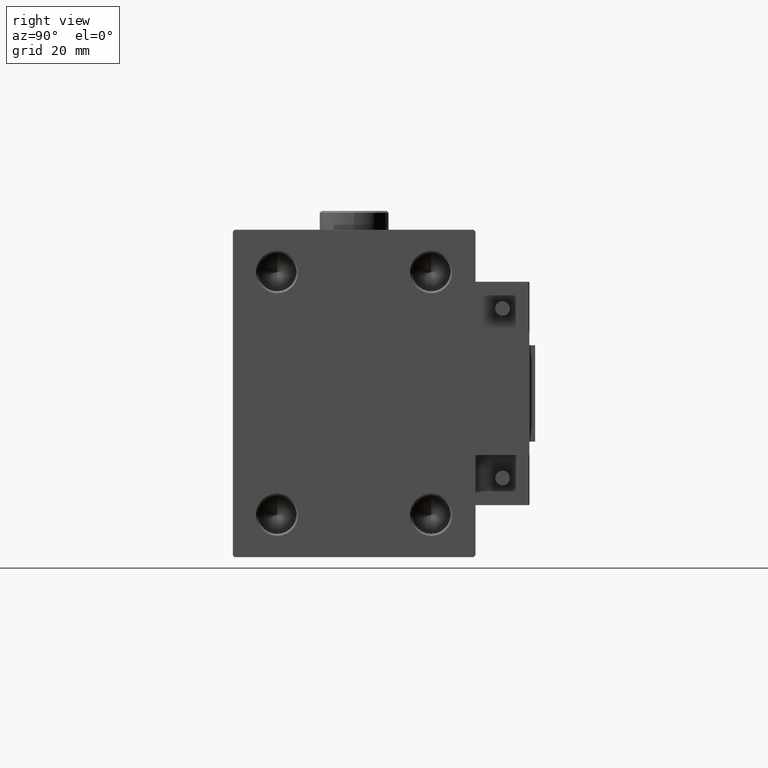
[diagram: clean part render]
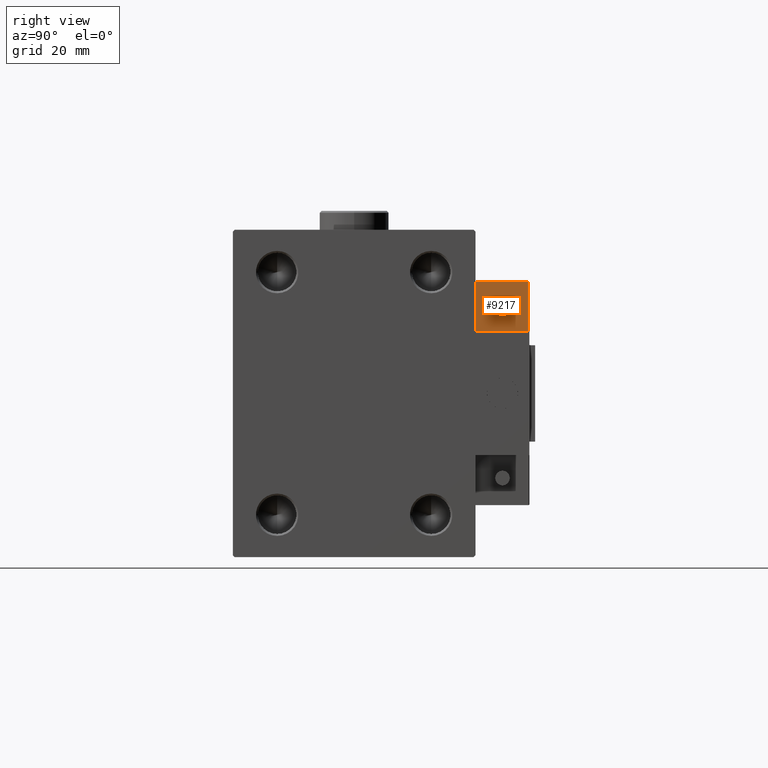
[diagram: same view with one face highlighted and labeled with its STEP entity id]
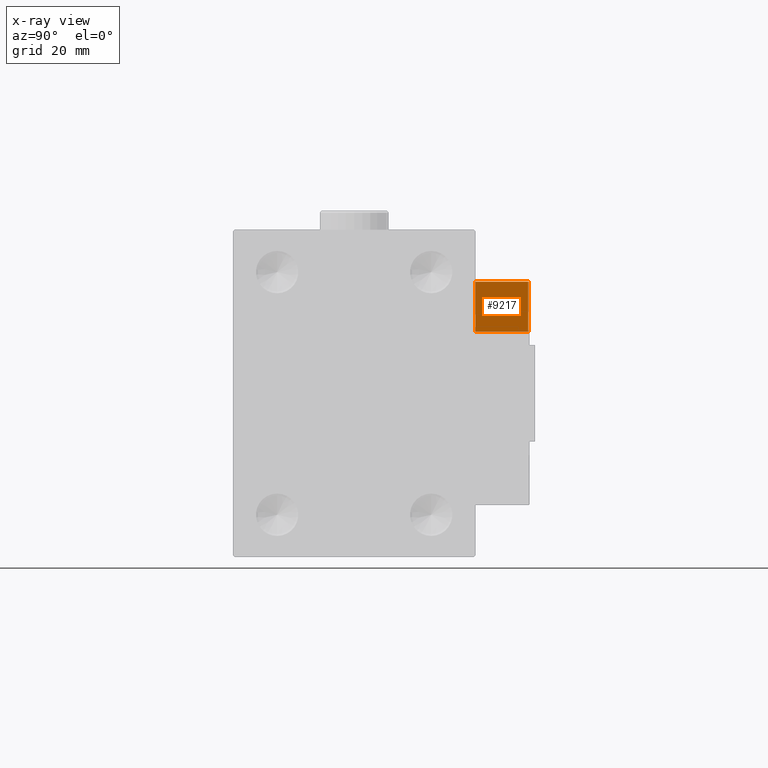
[diagram: x-ray of the same camera — body ghosted, the highlighted face saturated]
A machine part, right view. The second image highlights one B-rep face of the part: STEP entity #9217.
The next image is the same camera in x-ray: the body ghosted, the highlighted face saturated — about 6% of this face is hidden behind the body in this view.
In plain terms, the highlighted planar face has unit normal (-1, -0, -0).
Its self-contained STEP definition (entity closure, byte-faithful):
#2242 = ORIENTED_EDGE ( 'NONE', *, *, #10860, .T. ) ;
#2747 = CARTESIAN_POINT ( 'NONE',  ( -26.99999999999993605, 20.00000000000002132, 13.70000000000000107 ) ) ;
#3436 = CARTESIAN_POINT ( 'NONE',  ( -26.99999999999994671, 7.000000000000005329, 13.70000000000000107 ) ) ;
#3584 = VERTEX_POINT ( 'NONE', #10083 ) ;
#3703 = LINE ( 'NONE', #27813, #19141 ) ;
#3966 = DIRECTION ( 'NONE',  ( -8.006416042969869188E-16, -1.000000000000000000, 0.000000000000000000 ) ) ;
#6372 = LINE ( 'NONE', #26492, #14369 ) ;
#9217 = ADVANCED_FACE ( 'NONE', ( #35208 ), #30958, .F. ) ;
#10083 = CARTESIAN_POINT ( 'NONE',  ( -26.99999999999994671, 7.000000000000005329, 0.000000000000000000 ) ) ;
#10108 = ORIENTED_EDGE ( 'NONE', *, *, #44570, .T. ) ;
#10569 = LINE ( 'NONE', #51115, #18941 ) ;
#10860 = EDGE_CURVE ( 'NONE', #21847, #47517, #47792, .T. ) ;
#14369 = VECTOR ( 'NONE', #26761, 1000.000000000000000 ) ;
#15315 = DIRECTION ( 'NONE',  ( -0.000000000000000000, -0.000000000000000000, -1.000000000000000000 ) ) ;
#18642 = CARTESIAN_POINT ( 'NONE',  ( -26.99999999999993605, 20.00000000000002132, 13.70000000000000107 ) ) ;
#18941 = VECTOR ( 'NONE', #15315, 1000.000000000000000 ) ;
#19141 = VECTOR ( 'NONE', #3966, 1000.000000000000000 ) ;
#19183 = EDGE_CURVE ( 'NONE', #51491, #3584, #3703, .T. ) ;
#19786 = VECTOR ( 'NONE', #47274, 1000.000000000000000 ) ;
#21847 = VERTEX_POINT ( 'NONE', #3436 ) ;
#22230 = DIRECTION ( 'NONE',  ( 8.006416042969869188E-16, 1.000000000000000000, 0.000000000000000000 ) ) ;
#24576 = CARTESIAN_POINT ( 'NONE',  ( -26.99999999999993605, 20.00000000000002132, 0.000000000000000000 ) ) ;
#26492 = CARTESIAN_POINT ( 'NONE',  ( -26.99999999999993605, 20.00000000000002132, 14.00000000000000000 ) ) ;
#26730 = CARTESIAN_POINT ( 'NONE',  ( -26.99999999999993605, 20.00000000000002132, 14.00000000000000000 ) ) ;
#26761 = DIRECTION ( 'NONE',  ( -0.000000000000000000, -0.000000000000000000, -1.000000000000000000 ) ) ;
#27813 = CARTESIAN_POINT ( 'NONE',  ( -26.99999999999993605, 20.00000000000002132, 0.000000000000000000 ) ) ;
#28450 = EDGE_CURVE ( 'NONE', #21847, #3584, #10569, .T. ) ;
#30702 = DIRECTION ( 'NONE',  ( 1.000000000000000000, -8.006416042969869188E-16, 0.000000000000000000 ) ) ;
#30958 = PLANE ( 'NONE',  #34189 ) ;
#34189 = AXIS2_PLACEMENT_3D ( 'NONE', #26730, #30702, #22230 ) ;
#35208 = FACE_OUTER_BOUND ( 'NONE', #40934, .T. ) ;
#36571 = ORIENTED_EDGE ( 'NONE', *, *, #19183, .T. ) ;
#40934 = EDGE_LOOP ( 'NONE', ( #45489, #2242, #10108, #36571 ) ) ;
#44570 = EDGE_CURVE ( 'NONE', #47517, #51491, #6372, .T. ) ;
#45489 = ORIENTED_EDGE ( 'NONE', *, *, #28450, .F. ) ;
#47274 = DIRECTION ( 'NONE',  ( 8.006416042969869188E-16, 1.000000000000000000, -0.000000000000000000 ) ) ;
#47517 = VERTEX_POINT ( 'NONE', #2747 ) ;
#47792 = LINE ( 'NONE', #18642, #19786 ) ;
#51115 = CARTESIAN_POINT ( 'NONE',  ( -26.99999999999994671, 7.000000000000005329, 14.00000000000000000 ) ) ;
#51491 = VERTEX_POINT ( 'NONE', #24576 ) ;